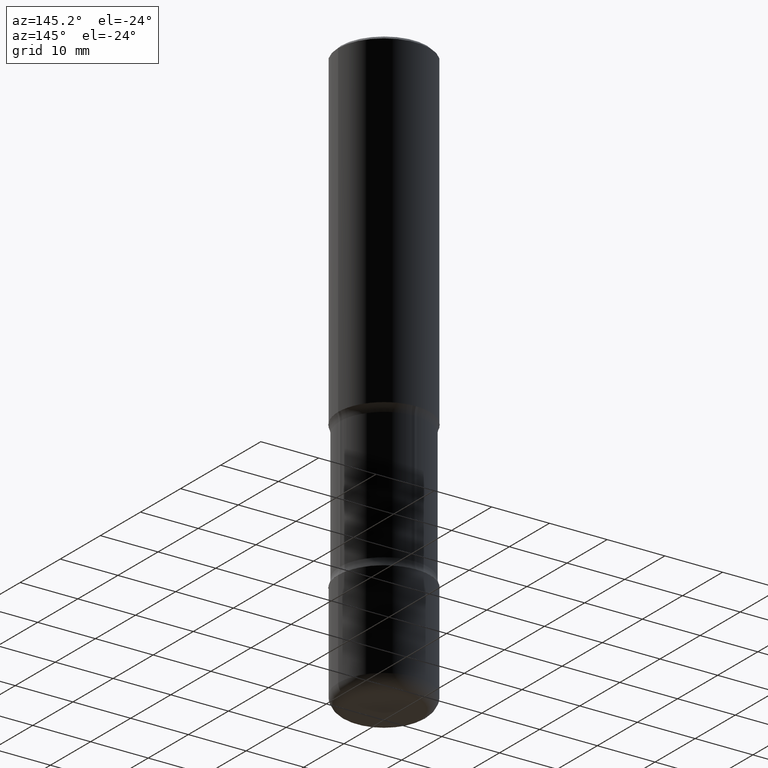
[diagram: clean part render]
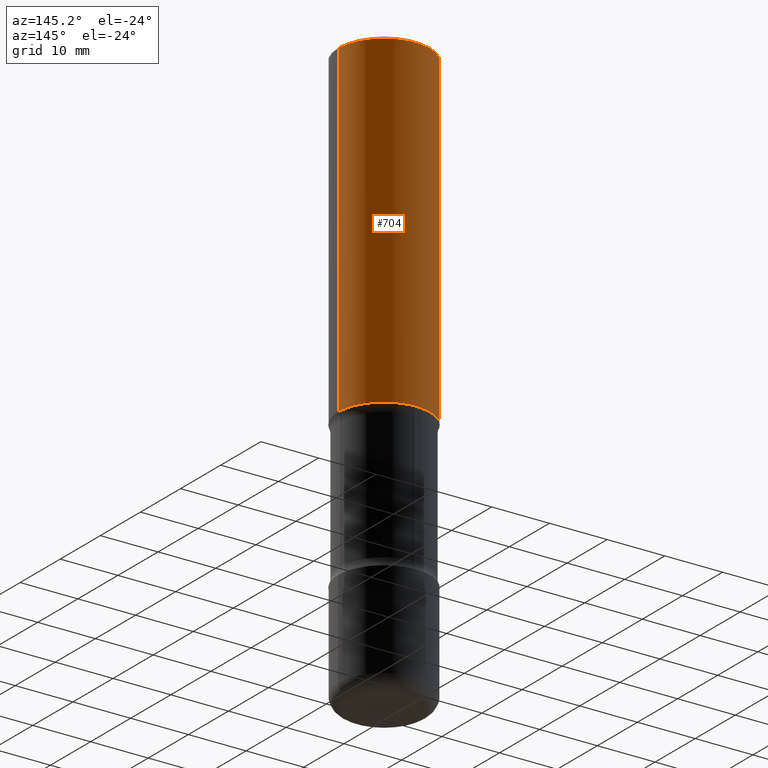
[diagram: same view with one face highlighted and labeled with its STEP entity id]
A machine part, auxiliary view. The second image highlights one B-rep face of the part: STEP entity #704.
In plain terms, the highlighted cylindrical surface (partial cylindrical patch) has radius 7.9375 mm, axis along (-0, 0, 1).
Its self-contained STEP definition (entity closure, byte-faithful):
#14 = CYLINDRICAL_SURFACE ( 'NONE', #451, 0.3124999999999998890 ) ;
#39 = VERTEX_POINT ( 'NONE', #44 ) ;
#44 = CARTESIAN_POINT ( 'NONE',  ( 0.3125000000000000000, -1.003800884917403522E-14, -2.250000000000000000 ) ) ;
#49 = CARTESIAN_POINT ( 'NONE',  ( 0.3124999999999997224, -2.213735251080464939E-15, -0.02000000000000006981 ) ) ;
#63 = EDGE_CURVE ( 'NONE', #291, #669, #554, .T. ) ;
#75 = CARTESIAN_POINT ( 'NONE',  ( 0.000000000000000000, 0.000000000000000000, 0.000000000000000000 ) ) ;
#111 = EDGE_LOOP ( 'NONE', ( #452, #538, #551, #117 ) ) ;
#117 = ORIENTED_EDGE ( 'NONE', *, *, #566, .F. ) ;
#199 = DIRECTION ( 'NONE',  ( -2.445468806185136597E-29, 3.491481338843145583E-15, 1.000000000000000000 ) ) ;
#291 = VERTEX_POINT ( 'NONE', #482 ) ;
#296 = VERTEX_POINT ( 'NONE', #49 ) ;
#304 = CARTESIAN_POINT ( 'NONE',  ( 4.890937612370289799E-31, -6.982962677686315028E-17, -0.02000000000000006981 ) ) ;
#317 = CARTESIAN_POINT ( 'NONE',  ( 0.3124999999999998890, -2.182175836776957558E-15, 1.523805242436229235E-29 ) ) ;
#321 = CARTESIAN_POINT ( 'NONE',  ( 5.502304813916557343E-29, -7.855833012397078448E-15, -2.250000000000000000 ) ) ;
#333 = DIRECTION ( 'NONE',  ( 1.000000000000000000, -6.982962677686265133E-15, 0.000000000000000000 ) ) ;
#359 = LINE ( 'NONE', #317, #596 ) ;
#406 = CIRCLE ( 'NONE', #473, 0.3124999999999997224 ) ;
#425 = CIRCLE ( 'NONE', #517, 0.3125000000000000000 ) ;
#430 = DIRECTION ( 'NONE',  ( -2.445468806185136597E-29, 3.491481338843145583E-15, 1.000000000000000000 ) ) ;
#451 = AXIS2_PLACEMENT_3D ( 'NONE', #75, #199, #767 ) ;
#452 = ORIENTED_EDGE ( 'NONE', *, *, #729, .T. ) ;
#473 = AXIS2_PLACEMENT_3D ( 'NONE', #304, #430, #750 ) ;
#482 = CARTESIAN_POINT ( 'NONE',  ( -0.3125000000000000000, -1.742385270336656017E-15, -2.250000000000000000 ) ) ;
#517 = AXIS2_PLACEMENT_3D ( 'NONE', #321, #769, #333 ) ;
#522 = CARTESIAN_POINT ( 'NONE',  ( -0.3124999999999997224, 2.112346210000093471E-15, -0.02000000000000006981 ) ) ;
#538 = ORIENTED_EDGE ( 'NONE', *, *, #63, .T. ) ;
#551 = ORIENTED_EDGE ( 'NONE', *, *, #557, .F. ) ;
#554 = LINE ( 'NONE', #687, #751 ) ;
#557 = EDGE_CURVE ( 'NONE', #296, #669, #406, .T. ) ;
#564 = DIRECTION ( 'NONE',  ( -2.445468806185136877E-29, 3.491481338843145188E-15, 1.000000000000000000 ) ) ;
#566 = EDGE_CURVE ( 'NONE', #39, #296, #359, .T. ) ;
#577 = FACE_OUTER_BOUND ( 'NONE', #111, .T. ) ;
#596 = VECTOR ( 'NONE', #564, 39.37007874015748143 ) ;
#669 = VERTEX_POINT ( 'NONE', #522 ) ;
#687 = CARTESIAN_POINT ( 'NONE',  ( -0.3124999999999998890, 2.220446049250312292E-15, -1.537167215704657391E-29 ) ) ;
#704 = ADVANCED_FACE ( 'NONE', ( #577 ), #14, .T. ) ;
#729 = EDGE_CURVE ( 'NONE', #39, #291, #425, .T. ) ;
#732 = DIRECTION ( 'NONE',  ( -2.445468806185136877E-29, 3.491481338843145188E-15, 1.000000000000000000 ) ) ;
#750 = DIRECTION ( 'NONE',  ( 1.000000000000000000, -6.982962677686266711E-15, 0.000000000000000000 ) ) ;
#751 = VECTOR ( 'NONE', #732, 39.37007874015748143 ) ;
#767 = DIRECTION ( 'NONE',  ( 1.000000000000000000, -6.982962677686266711E-15, 4.876176775795935232E-29 ) ) ;
#769 = DIRECTION ( 'NONE',  ( -2.445468806185136597E-29, 3.491481338843145583E-15, 1.000000000000000000 ) ) ;